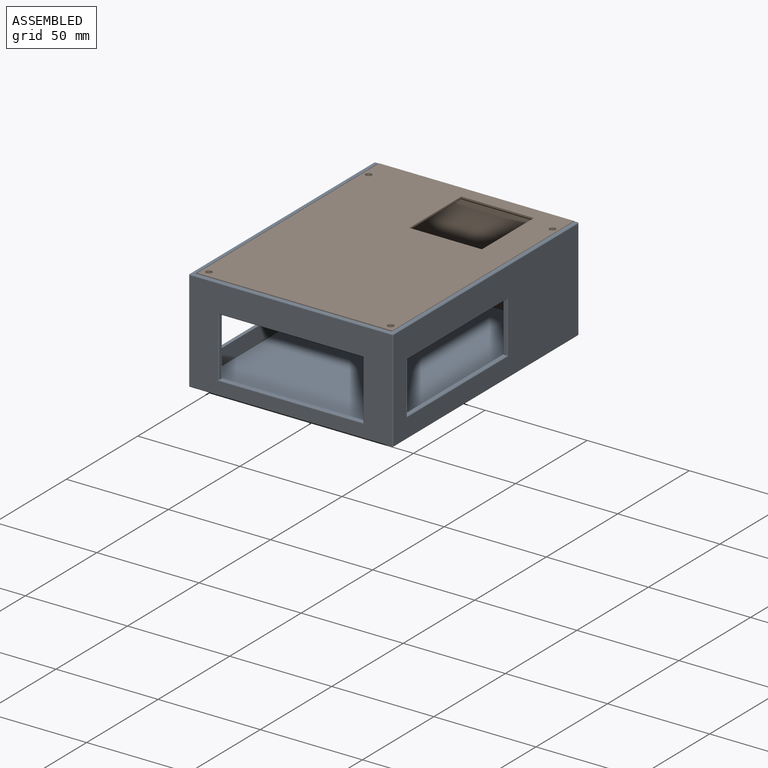
[diagram: assembled view]
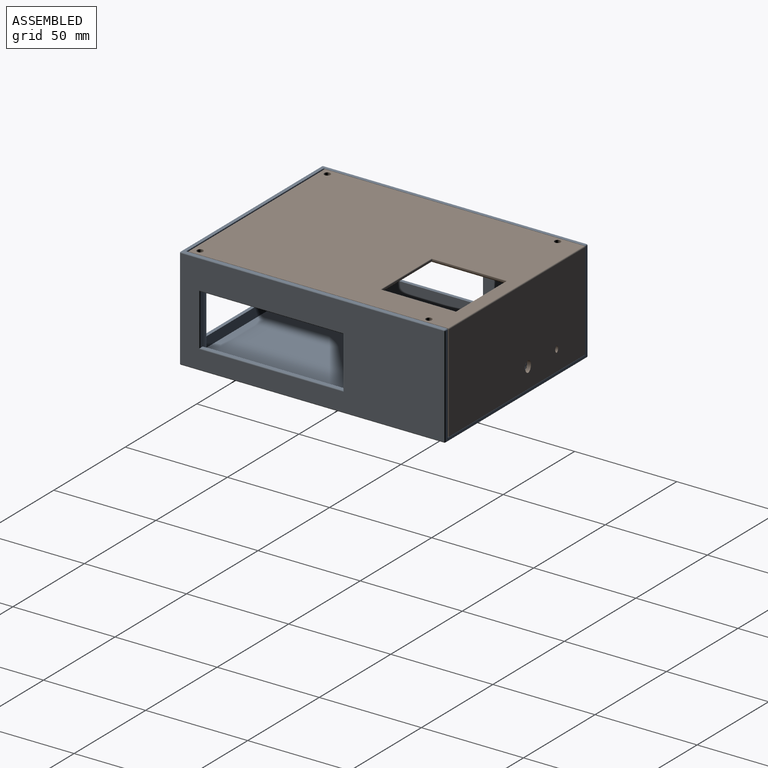
[diagram: assembled view, second angle]
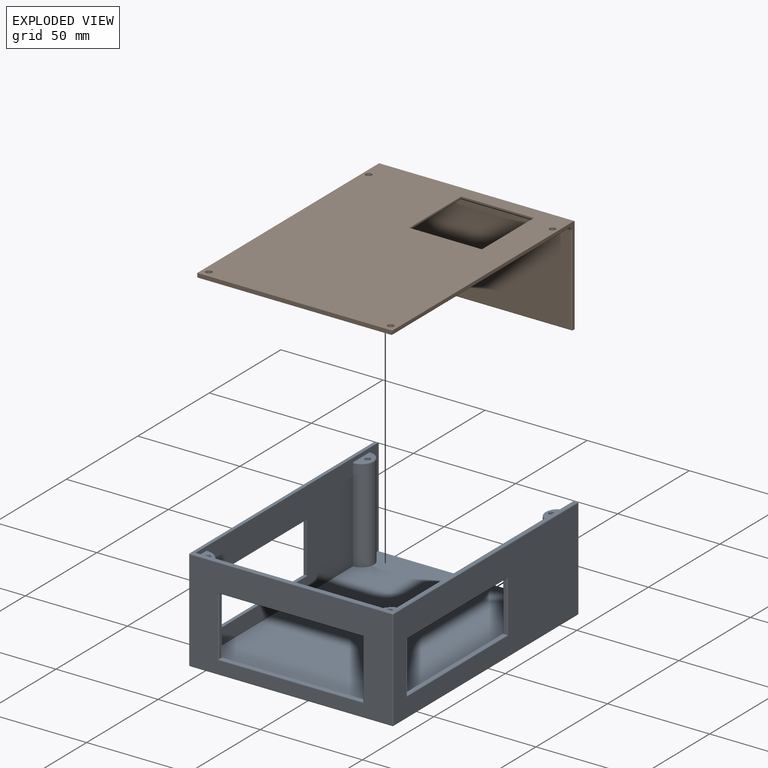
[diagram: exploded view]
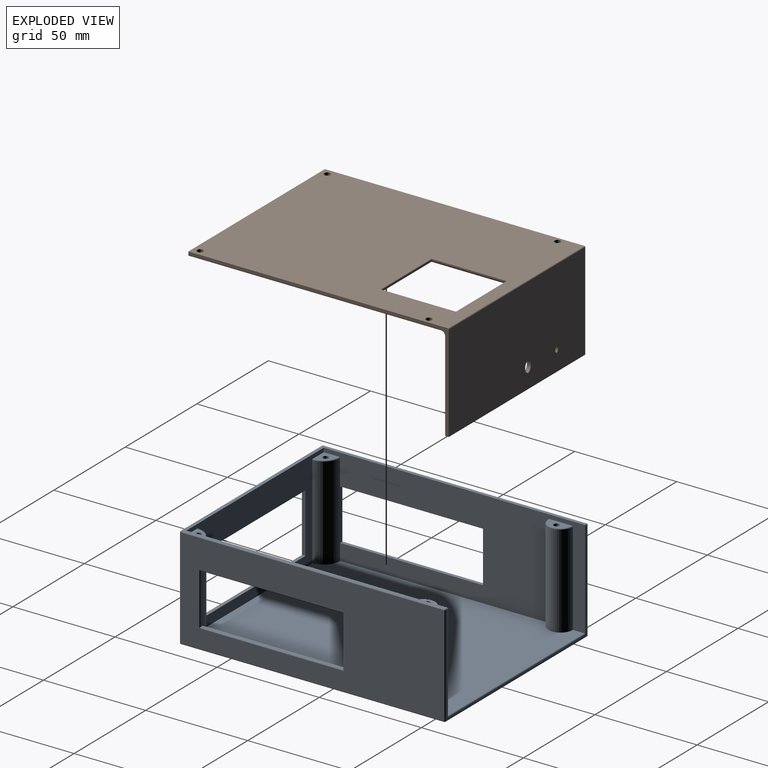
[diagram: exploded view, second angle]
ASSEMBLY  parts=2 mates=2
PART A: 81 faces, bbox 100x130x50 mm
  f0: plane 96x48mm, normal (0,1,0), area 1827.6mm2, adj f4,f6,f8,f9,f12,f13,f14,f15
  f1: plane 99x49mm, normal (0,-1,0), area 2706mm2, adj f43,f44,f45,f46,f61,f65,f68,f69
  f2: plane 129x49mm, normal (1,0,0), area 4475mm2, adj f51,f52,f53,f54,f69,f73,f76,f79
  f3: plane 129x49mm, normal (-1,0,0), area 4475mm2, adj f47,f48,f49,f50,f60,f61,f66,f67
  f4: plane 128x48.5mm, normal (-1,0,0), area 3474.2mm2, adj f0,f5,f6,f9,f14,f15,f16,f17
  f5: plane 99x49mm, normal (0,1,0), area 243mm2, adj f4,f8,f59,f66,f74,f75,f79,f80
  f6: plane 127.5x96mm, normal (0,0,1), area 11976.4mm2, adj f0,f4,f8,f11,f13,f15,f17,f19
  f7: plane 129x99mm, normal (0,0,-1), area 12771mm2, adj f67,f68,f75,f76
  f8: plane 128x48.5mm, normal (1,0,0), area 3474.2mm2, adj f0,f5,f6,f9,f10,f11,f12,f13
  f9: plane 129x99mm, normal (0,0,1), area 531mm2, adj f0,f4,f8,f59,f60,f65,f73,f74
  f10: plane 11x5.5mm, normal (0,0,1), area 41.8mm2, adj f8,f37,f58
  f11: cylinder r=6mm len=45.5mm, axis (0,0,-1), area 857.7mm2, adj f6,f8,f58
  f12: plane 7.5x7.5mm, normal (0,0,1), area 38.5mm2, adj f0,f8,f41,f56
  f13: cylinder r=8mm len=45.5mm, axis (0,0,-1), area 571.8mm2, adj f0,f6,f8,f29,f56
  f14: plane 7.5x7.5mm, normal (0,0,1), area 38.5mm2, adj f0,f4,f39,f55
  f15: cylinder r=8mm len=45.5mm, axis (0,0,-1), area 571.8mm2, adj f0,f4,f6,f23,f55
  f16: plane 11x5.5mm, normal (0,0,1), area 41.8mm2, adj f4,f35,f57
  f17: cylinder r=6mm len=45.5mm, axis (0,0,-1), area 857.7mm2, adj f4,f6,f57
  f18: plane 10x5mm, normal (0,0,1), area 50mm2, adj f19,f20,f21,f22
  f19: plane 10x5mm, normal (0,-1,0), area 50mm2, adj f6,f18,f20,f22
  f20: plane 5x5mm, normal (-1,0,0), area 25mm2, adj f6,f18,f19,f21
  f21: plane 10x5mm, normal (0,1,0), area 50mm2, adj f6,f18,f20,f22
  f22: plane 5x5mm, normal (1,0,0), area 25mm2, adj f6,f18,f19,f21
  f23: plane 25x1.5mm, normal (0,1,0), area 37.5mm2, adj f15,f24,f25,f54
  f24: plane 70x1.5mm, normal (0,0,1), area 105mm2, adj f4,f23,f26,f53
  f25: plane 70x1.5mm, normal (0,0,-1), area 105mm2, adj f4,f23,f26,f52
  f26: plane 25x1.5mm, normal (0,-1,0), area 37.5mm2, adj f4,f24,f25,f51
  f27: plane 25x1.5mm, normal (0,-1,0), area 37.5mm2, adj f8,f28,f30,f50
  f28: plane 70x1.5mm, normal (0,0,-1), area 105mm2, adj f8,f27,f29,f48
  f29: plane 25x1.5mm, normal (0,1,0), area 37.5mm2, adj f13,f28,f30,f47
  f30: plane 70x1.5mm, normal (0,0,1), area 105mm2, adj f8,f27,f29,f49
  f31: plane 70.5x1.5mm, normal (0,0,1), area 105.8mm2, adj f0,f32,f34,f46
  f32: plane 29x1.5mm, normal (1,0,0), area 43.5mm2, adj f0,f31,f33,f45
  f33: plane 70.5x1.5mm, normal (0,0,-1), area 105.8mm2, adj f0,f32,f34,f43
  f34: plane 29x1.5mm, normal (-1,0,0), area 43.5mm2, adj f0,f31,f33,f44
  f35: cylinder r=1.35mm len=15mm, axis (0,0,1), area 127.2mm2, adj f16,f36
  f36: plane 2.7x2.7mm, normal (0,0,1), area 5.7mm2, adj f35
  f37: cylinder r=1.35mm len=15mm, axis (0,0,1), area 127.2mm2, adj f10,f38
  f38: plane 2.7x2.7mm, normal (0,0,1), area 5.7mm2, adj f37
  f39: cylinder r=1.35mm len=15mm, axis (0,0,1), area 127.2mm2, adj f14,f40
  f40: plane 2.7x2.7mm, normal (0,0,1), area 5.7mm2, adj f39
  f41: cylinder r=1.35mm len=15mm, axis (0,0,1), area 127.2mm2, adj f12,f42
  f42: plane 2.7x2.7mm, normal (0,0,1), area 5.7mm2, adj f41
  f43: cylinder r=0.5mm len=71.5mm, axis (1,0,0), area 55.7mm2, adj f1,f33,f44,f45
  f44: cylinder r=0.5mm len=30mm, axis (0,0,-1), area 23.1mm2, adj f1,f34,f43,f46
  f45: cylinder r=0.5mm len=30mm, axis (0,0,1), area 23.1mm2, adj f1,f32,f43,f46
  f46: cylinder r=0.5mm len=71.5mm, axis (-1,0,0), area 55.7mm2, adj f1,f31,f44,f45
  f47: cylinder r=0.5mm len=26mm, axis (0,0,-1), area 19.9mm2, adj f3,f29,f48,f49
  f48: cylinder r=0.5mm len=71mm, axis (0,-1,0), area 55.3mm2, adj f3,f28,f47,f50
  f49: cylinder r=0.5mm len=71mm, axis (0,1,0), area 55.3mm2, adj f3,f30,f47,f50
  f50: cylinder r=0.5mm len=26mm, axis (0,0,1), area 19.9mm2, adj f3,f27,f48,f49
  f51: cylinder r=0.5mm len=26mm, axis (0,0,-1), area 19.9mm2, adj f2,f26,f52,f53
  f52: cylinder r=0.5mm len=71mm, axis (0,1,0), area 55.3mm2, adj f2,f25,f51,f54
  f53: cylinder r=0.5mm len=71mm, axis (0,-1,0), area 55.3mm2, adj f2,f24,f51,f54
  f54: cylinder r=0.5mm len=26mm, axis (0,0,1), area 19.9mm2, adj f2,f23,f52,f53
  f55: torus R=7.5mm, axis (0,0,1), area 9.6mm2, adj f0,f4,f14,f15
  f56: torus R=7.5mm, axis (0,0,1), area 9.6mm2, adj f0,f8,f12,f13
  f57: torus R=5.5mm, axis (0,0,1), area 14.4mm2, adj f4,f16,f17
  f58: torus R=5.5mm, axis (0,0,1), area 14.4mm2, adj f8,f10,f11
  f59: cylinder r=0.5mm len=1.5mm, axis (1,0,0), area 1.2mm2, adj f5,f8,f9,f63
  f60: cylinder r=0.5mm len=129mm, axis (0,1,0), area 101.3mm2, adj f3,f9,f62,f63
  f61: cylinder r=0.5mm len=49mm, axis (0,0,1), area 38.5mm2, adj f1,f3,f62,f64
  f62: sphere r=0.5mm, area 0.4mm2, adj f60,f61,f65
  f63: sphere r=0.5mm, area 0.4mm2, adj f59,f60,f66
  f64: sphere r=0.5mm, area 0.4mm2, adj f61,f67,f68
  f65: cylinder r=0.5mm len=99mm, axis (-1,0,0), area 77.8mm2, adj f1,f9,f62,f70
  f66: cylinder r=0.5mm len=49mm, axis (0,0,-1), area 38.5mm2, adj f3,f5,f63,f71
  f67: cylinder r=0.5mm len=129mm, axis (0,-1,0), area 101.3mm2, adj f3,f7,f64,f71
  f68: cylinder r=0.5mm len=99mm, axis (1,0,0), area 77.8mm2, adj f1,f7,f64,f72
  f69: cylinder r=0.5mm len=49mm, axis (0,0,-1), area 38.5mm2, adj f1,f2,f70,f72
  f70: sphere r=0.5mm, area 0.4mm2, adj f65,f69,f73
  f71: sphere r=0.5mm, area 0.4mm2, adj f66,f67,f75
  f72: sphere r=0.5mm, area 0.4mm2, adj f68,f69,f76
  f73: cylinder r=0.5mm len=129mm, axis (0,-1,0), area 101.3mm2, adj f2,f9,f70,f77
  f74: cylinder r=0.5mm len=1.5mm, axis (1,0,0), area 1.2mm2, adj f4,f5,f9,f77
  f75: cylinder r=0.5mm len=99mm, axis (-1,0,0), area 77.8mm2, adj f5,f7,f71,f78
  f76: cylinder r=0.5mm len=129mm, axis (0,1,0), area 101.3mm2, adj f2,f7,f72,f78
  f77: sphere r=0.5mm, area 0.4mm2, adj f73,f74,f79
  f78: sphere r=0.5mm, area 0.4mm2, adj f75,f76,f79
  f79: cylinder r=0.5mm len=49mm, axis (0,0,1), area 38.5mm2, adj f2,f5,f77,f78
  f80: cylinder r=0.5mm len=96mm, axis (1,0,0), area 75.4mm2, adj f4,f5,f6,f8
PART B: 35 faces, bbox 95.5x127.5x48 mm
  f0: plane 35.5x0.7mm, normal (0,-1,0), area 24.9mm2, adj f1,f10,f28,f31
  f1: plane 36.5x0.7mm, normal (-1,0,0), area 25.6mm2, adj f0,f2,f26,f32
  f2: plane 35.5x0.7mm, normal (0,1,0), area 24.9mm2, adj f1,f10,f25,f34
  f3: plane 127.5x48mm, normal (1,0,0), area 262.3mm2, adj f9,f12,f14,f15,f17,f18,f19,f24
  f4: plane 127.5x48mm, normal (-1,0,0), area 262.3mm2, adj f9,f12,f14,f15,f21,f22,f23,f24
  f5: cylinder r=1.5mm len=3mm, axis (0,0,-1), area 18.8mm2, adj f11,f12
  f6: cylinder r=1.5mm len=3mm, axis (0,0,-1), area 18.8mm2, adj f11,f12
  f7: cylinder r=1.5mm len=3mm, axis (0,0,-1), area 18.8mm2, adj f11,f12
  f8: cylinder r=1.5mm len=3mm, axis (0,0,-1), area 18.8mm2, adj f11,f12
  f9: plane 95.5x2mm, normal (0,-1,0), area 190.9mm2, adj f3,f4,f11,f12,f17,f23
  f10: plane 36.5x0.7mm, normal (1,0,0), area 25.6mm2, adj f0,f2,f27,f33
  f11: plane 123.5x94.5mm, normal (0,0,1), area 10198.7mm2, adj f5,f6,f7,f8,f9,f16,f17,f23
  f12: plane 127x95.5mm, normal (0,0,-1), area 10760.9mm2, adj f3,f4,f5,f6,f7,f8,f9,f24
  f13: plane 94.5x43.5mm, normal (0,-1,0), area 4088.8mm2, adj f16,f19,f20,f21,f29,f30
  f14: plane 95.5x47.5mm, normal (0,1,0), area 4514.3mm2, adj f3,f4,f15,f24,f29,f30
  f15: plane 95.5x1.5mm, normal (0,0,1), area 143.3mm2, adj f3,f4,f14,f20
  f16: cylinder r=2mm len=94.5mm, axis (1,0,0), area 296.9mm2, adj f11,f13,f18,f22
  f17: cylinder r=0.5mm len=123.5mm, axis (0,-1,0), area 97mm2, adj f3,f9,f11,f18
  f18: torus R=2.5mm, axis (1,0,0), area 2.7mm2, adj f3,f16,f17,f19
  f19: cylinder r=0.5mm len=44mm, axis (0,0,-1), area 34.4mm2, adj f3,f13,f18,f20
  f20: cylinder r=0.5mm len=95.5mm, axis (-1,0,0), area 74.7mm2, adj f13,f15,f19,f21
  f21: cylinder r=0.5mm len=44mm, axis (0,0,1), area 34.4mm2, adj f4,f13,f20,f22
  f22: torus R=2.5mm, axis (1,0,0), area 2.7mm2, adj f4,f16,f21,f23
  f23: cylinder r=0.5mm len=123.5mm, axis (0,1,0), area 97mm2, adj f4,f9,f11,f22
  f24: cylinder r=0.5mm len=95.5mm, axis (-1,0,0), area 75mm2, adj f3,f4,f12,f14
  f25: plane 37.5x1mm, normal (0,0.71,0.71), area 51.6mm2, adj f2,f11,f26,f27
  f26: plane 38.5x1mm, normal (-0.71,0,0.71), area 53mm2, adj f1,f11,f25,f28
  f27: plane 38.5x1mm, normal (0.71,0,0.71), area 53mm2, adj f10,f11,f25,f28
  f28: plane 37.5x1mm, normal (0,-0.71,0.71), area 51.6mm2, adj f0,f11,f26,f27
  f29: extruded ~3x2mm, area 15.9mm2, adj f13,f14
  f30: extruded ~5.5x4mm, area 30mm2, adj f13,f14
  f31: cylinder r=0.3mm len=36.1mm, axis (1,0,0), area 16.8mm2, adj f0,f12,f32,f33
  f32: cylinder r=0.3mm len=37.1mm, axis (0,-1,0), area 17.3mm2, adj f1,f12,f31,f34
  f33: cylinder r=0.3mm len=37.1mm, axis (0,1,0), area 17.3mm2, adj f10,f12,f31,f34
  f34: cylinder r=0.3mm len=36.1mm, axis (-1,0,0), area 16.8mm2, adj f2,f12,f32,f33
PLACE A t=(-204.77,-156.75,5.84)mm
PLACE B rot(axis=(0,-1,0),180deg) t=(-204.77,-155.25,55.84)mm
MATE parallel A.f6 <-> B.f15  axis (0,0,1) through (-204.77,-92.25,7.84)mm
MATE parallel A.f0 <-> B.f9  axis (0,1,0) through (-204.77,-219.75,55.84)mm
